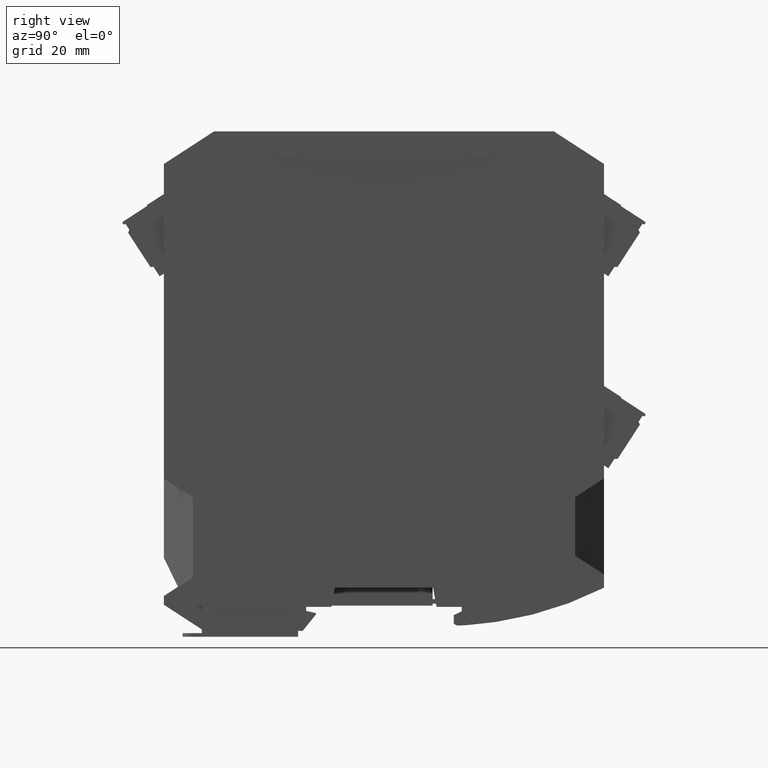
[diagram: clean part render]
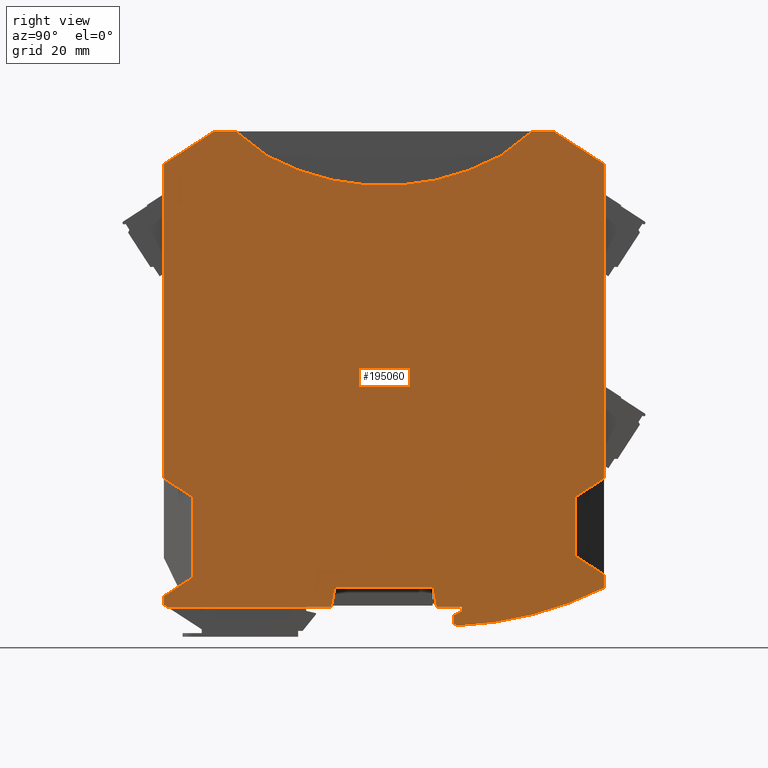
[diagram: same view with one face highlighted and labeled with its STEP entity id]
A machine part, right view. The second image highlights one B-rep face of the part: STEP entity #195060.
In plain terms, the highlighted planar face has unit normal (1, -0, -0).
Its self-contained STEP definition (entity closure, byte-faithful):
#192610=CARTESIAN_POINT('',(12.5999992226559,78.7424712276297,
8.78817903685641));
#192620=DIRECTION('',(1.,-2.28384227807283E-18,-2.28384227806855E-18));
#192630=DIRECTION('',(2.28384227806852E-18,1.,-1.88477583894362E-12));
#192640=AXIS2_PLACEMENT_3D('',#192610,#192620,#192630);
#192650=PLANE('',#192640);
#192660=CARTESIAN_POINT('',(12.5999992226559,56.3643478316776,
87.6172334752486));
#192670=DIRECTION('',(-3.93618568336303E-19,-0.788010753606729,
0.61566147532565));
#192680=VECTOR('',#192670,1.);
#192690=LINE('',#192660,#192680);
#192700=CARTESIAN_POINT('',(12.5999992226559,30.0196080509323,
108.200000000004));
#192710=VERTEX_POINT('',#192700);
#192720=CARTESIAN_POINT('',(12.5999992226559,23.0439261554903,
113.649999999996));
#192730=VERTEX_POINT('',#192720);
#192740=EDGE_CURVE('',#192710,#192730,#192690,.T.);
#192750=ORIENTED_EDGE('',*,*,#192740,.T.);
#192760=CARTESIAN_POINT('',(12.5999992226559,56.3643478316776,
87.6172334752487));
#192770=DIRECTION('',(3.93618568336303E-19,0.788010753606729,
-0.61566147532565));
#192780=VECTOR('',#192770,1.);
#192790=LINE('',#192760,#192780);
#192800=CARTESIAN_POINT('',(12.5999992226559,30.0836051325353,
108.150000000009));
#192810=VERTEX_POINT('',#192800);
#192820=EDGE_CURVE('',#192710,#192810,#192790,.T.);
#192830=ORIENTED_EDGE('',*,*,#192820,.F.);
#192840=CARTESIAN_POINT('',(12.5999992226559,56.364347831579,
156.343092299512));
#192850=DIRECTION('',(-1.,2.22464679914735E-16,-4.93038065763132E-32));
#192860=DIRECTION('',(-2.22464679914735E-16,-1.,-2.22464679914932E-16));
#192870=AXIS2_PLACEMENT_3D('',#192840,#192850,#192860);
#192880=CIRCLE('',#192870,54.8930922995028);
#192890=CARTESIAN_POINT('',(12.5999992226559,82.6450905306229,
108.150000000009));
#192900=VERTEX_POINT('',#192890);
#192910=EDGE_CURVE('',#192900,#192810,#192880,.T.);
#192920=ORIENTED_EDGE('',*,*,#192910,.T.);
#192930=CARTESIAN_POINT('',(12.5999992226559,56.3643478316776,
87.6172334754011));
#192940=DIRECTION('',(3.20576598098986E-18,0.788010753606706,
0.615661475325679));
#192950=VECTOR('',#192940,1.);
#192960=LINE('',#192930,#192950);
#192970=CARTESIAN_POINT('',(12.5999992226559,82.7090876122257,
108.200000000004));
#192980=VERTEX_POINT('',#192970);
#192990=EDGE_CURVE('',#192900,#192980,#192960,.T.);
#193000=ORIENTED_EDGE('',*,*,#192990,.F.);
#193010=CARTESIAN_POINT('',(12.5999992226559,56.3643478316776,
87.6172334754011));
#193020=DIRECTION('',(-3.20576598098986E-18,-0.788010753606706,
-0.615661475325679));
#193030=VECTOR('',#193020,1.);
#193040=LINE('',#193010,#193030);
#193050=CARTESIAN_POINT('',(12.5999992226559,89.6847695075065,
113.64999999987));
#193060=VERTEX_POINT('',#193050);
#193070=EDGE_CURVE('',#193060,#192980,#193040,.T.);
#193080=ORIENTED_EDGE('',*,*,#193070,.T.);
#193090=CARTESIAN_POINT('',(12.5999992226559,56.3643478317267,
113.649999999933));
#193100=DIRECTION('',(-2.28384227806852E-18,-1.,1.88477583894362E-12));
#193110=VECTOR('',#193100,1.);
#193120=LINE('',#193090,#193110);
#193130=CARTESIAN_POINT('',(12.5999992226559,94.5643478317183,
113.649999999861));
#193140=VERTEX_POINT('',#193130);
#193150=EDGE_CURVE('',#193140,#193060,#193120,.T.);
#193160=ORIENTED_EDGE('',*,*,#193150,.T.);
#193170=CARTESIAN_POINT('',(12.5999992226559,56.3643478317735,
138.457370060075));
#193180=DIRECTION('',(-6.71521645989226E-19,-0.838670567944371,
0.544639035016649));
#193190=VECTOR('',#193180,1.);
#193200=LINE('',#193170,#193190);
#193210=CARTESIAN_POINT('',(12.5999992226559,105.864347832024,
106.3116941965));
#193220=VERTEX_POINT('',#193210);
#193230=EDGE_CURVE('',#193220,#193140,#193200,.T.);
#193240=ORIENTED_EDGE('',*,*,#193230,.T.);
#193250=CARTESIAN_POINT('',(12.5999992226559,105.864347831827,
-45.7500000001573));
#193260=DIRECTION('',(2.28384227806342E-18,-2.2462133274804E-12,1.));
#193270=VECTOR('',#193260,1.);
#193280=LINE('',#193250,#193270);
#193290=CARTESIAN_POINT('',(12.5999992226559,105.864347831891,
35.5499999998454));
#193300=VERTEX_POINT('',#193290);
#193310=EDGE_CURVE('',#193300,#193220,#193280,.T.);
#193320=ORIENTED_EDGE('',*,*,#193310,.T.);
#193330=CARTESIAN_POINT('',(12.5999992226559,56.3643478315189,
3.40432413645924));
#193340=DIRECTION('',(3.15926095490162E-18,0.838670567946448,
0.54463903501345));
#193350=VECTOR('',#193340,1.);
#193360=LINE('',#193330,#193350);
#193370=CARTESIAN_POINT('',(12.5999992226559,99.3643478320572,
31.3288506441107));
#193380=VERTEX_POINT('',#193370);
#193390=EDGE_CURVE('',#193380,#193300,#193360,.T.);
#193400=ORIENTED_EDGE('',*,*,#193390,.T.);
#193410=CARTESIAN_POINT('',(12.5999992226559,99.3643478319119,
-45.750000000145));
#193420=DIRECTION('',(2.28384227807285E-18,1.88477583894362E-12,1.));
#193430=VECTOR('',#193420,1.);
#193440=LINE('',#193410,#193430);
#193450=CARTESIAN_POINT('',(12.5999992226559,99.3643478320324,
18.1711493556043));
#193460=VERTEX_POINT('',#193450);
#193470=EDGE_CURVE('',#193460,#193380,#193440,.T.);
#193480=ORIENTED_EDGE('',*,*,#193470,.T.);
#193490=CARTESIAN_POINT('',(12.5999992226559,56.3643478315994,
46.0956758634177));
#193500=DIRECTION('',(-6.71521645989376E-19,-0.838670567944397,
0.544639035016609));
#193510=VECTOR('',#193500,1.);
#193520=LINE('',#193490,#193510);
#193530=CARTESIAN_POINT('',(12.5999992226559,105.86434783185,
13.9499999998452));
#193540=VERTEX_POINT('',#193530);
#193550=EDGE_CURVE('',#193540,#193460,#193520,.T.);
#193560=ORIENTED_EDGE('',*,*,#193550,.T.);
#193570=CARTESIAN_POINT('',(12.5999992226559,105.864347831738,
-45.7500000001573));
#193580=DIRECTION('',(2.28384227807285E-18,1.88477583894362E-12,1.));
#193590=VECTOR('',#193580,1.);
#193600=LINE('',#193570,#193590);
#193610=CARTESIAN_POINT('',(12.5999992226559,105.864347831845,
10.9577156021333));
#193620=VERTEX_POINT('',#193610);
#193630=EDGE_CURVE('',#193620,#193540,#193600,.T.);
#193640=ORIENTED_EDGE('',*,*,#193630,.T.);
#193650=CARTESIAN_POINT('',(12.5999992226559,69.8643478314702,
82.3999999999116));
#193660=DIRECTION('',(1.,-2.24748522192808E-16,-2.28384227764925E-18));
#193670=DIRECTION('',(2.24748522192804E-16,1.,-1.88477583894362E-12));
#193680=AXIS2_PLACEMENT_3D('',#193650,#193660,#193670);
#193690=CIRCLE('',#193680,80.);
#193700=CARTESIAN_POINT('',(12.5999992226559,72.8348559634011,
2.4551685132036));
#193710=VERTEX_POINT('',#193700);
#193720=EDGE_CURVE('',#193710,#193620,#193690,.T.);
#193730=ORIENTED_EDGE('',*,*,#193720,.T.);
#193740=CARTESIAN_POINT('',(12.5999992226559,56.3643478315335,
11.1520549917051));
#193750=DIRECTION('',(9.53188786604706E-19,0.884293463267878,
-0.466931548325557));
#193760=VECTOR('',#193750,1.);
#193770=LINE('',#193740,#193760);
#193780=CARTESIAN_POINT('',(12.5999992226559,72.0643478315185,
2.86201824122019));
#193790=VERTEX_POINT('',#193780);
#193800=EDGE_CURVE('',#193790,#193710,#193770,.T.);
#193810=ORIENTED_EDGE('',*,*,#193800,.T.);
#193820=CARTESIAN_POINT('',(12.5999992226559,72.0643478314266,
-45.7500000000936));
#193830=DIRECTION('',(-2.28384227807286E-18,-1.89111892978225E-12,-1.));
#193840=VECTOR('',#193830,1.);
#193850=LINE('',#193820,#193840);
#193860=CARTESIAN_POINT('',(12.5999992226559,72.0643478315222,
4.81064621522707));
#193870=VERTEX_POINT('',#193860);
#193880=EDGE_CURVE('',#193870,#193790,#193850,.T.);
#193890=ORIENTED_EDGE('',*,*,#193880,.T.);
#193900=CARTESIAN_POINT('',(12.5999992226559,56.3643478315078,
-2.5103840177771));
#193910=DIRECTION('',(-3.03505749462609E-18,-0.906307787037447,
-0.422618261738991));
#193920=VECTOR('',#193910,1.);
#193930=LINE('',#193900,#193920);
#193940=CARTESIAN_POINT('',(12.5999992226559,73.8643478315236,
5.64999999990262));
#193950=VERTEX_POINT('',#193940);
#193960=EDGE_CURVE('',#193950,#193870,#193930,.T.);
#193970=ORIENTED_EDGE('',*,*,#193960,.T.);
#193980=CARTESIAN_POINT('',(12.5999992226559,73.8643478314171,
-45.750000000097));
#193990=DIRECTION('',(-2.28384227807328E-18,-2.07306966391979E-12,-1.));
#194000=VECTOR('',#193990,1.);
#194010=LINE('',#193980,#194000);
#194020=CARTESIAN_POINT('',(12.5999992226559,73.8643478315257,
6.64999999990401));
#194030=VERTEX_POINT('',#194020);
#194040=EDGE_CURVE('',#194030,#193950,#194010,.T.);
#194050=ORIENTED_EDGE('',*,*,#194040,.T.);
#194060=CARTESIAN_POINT('',(12.5999992226559,56.364347831525,
6.64999999993364));
#194070=DIRECTION('',(2.28384227806896E-18,1.,-1.6929293002884E-12));
#194080=VECTOR('',#194070,1.);
#194090=LINE('',#194060,#194080);
#194100=CARTESIAN_POINT('',(12.5999992226559,68.1813701976076,
6.64999999991363));
#194110=VERTEX_POINT('',#194100);
#194120=EDGE_CURVE('',#194110,#194030,#194090,.T.);
#194130=ORIENTED_EDGE('',*,*,#194120,.T.);
#194140=CARTESIAN_POINT('',(12.5999992226559,77.4209039866324,
-45.7500000001037));
#194150=DIRECTION('',(-1.85256053243792E-18,0.173648177665074,
-0.984807753012535));
#194160=VECTOR('',#194150,1.);
#194170=LINE('',#194140,#194160);
#194180=CARTESIAN_POINT('',(12.5999992226559,67.4143478315339,
10.9999999999156));
#194190=VERTEX_POINT('',#194180);
#194200=EDGE_CURVE('',#194190,#194110,#194170,.T.);
#194210=ORIENTED_EDGE('',*,*,#194200,.T.);
#194220=CARTESIAN_POINT('',(12.5999992226559,56.3643478315332,
10.9999999999364));
#194230=DIRECTION('',(2.28384227806852E-18,1.,-1.88477583894362E-12));
#194240=VECTOR('',#194230,1.);
#194250=LINE('',#194220,#194240);
#194260=CARTESIAN_POINT('',(12.5999992226559,45.314347831534,
10.9999999999572));
#194270=VERTEX_POINT('',#194260);
#194280=EDGE_CURVE('',#194270,#194190,#194250,.T.);
#194290=ORIENTED_EDGE('',*,*,#194280,.T.);
#194300=CARTESIAN_POINT('',(12.5999992226559,35.3077916762215,
-45.7500000000243));
#194310=DIRECTION('',(2.6457306317685E-18,0.173648177668787,
0.984807753011881));
#194320=VECTOR('',#194310,1.);
#194330=LINE('',#194300,#194320);
#194340=CARTESIAN_POINT('',(12.5999992226559,44.5473254654439,
6.64999999995855));
#194350=VERTEX_POINT('',#194340);
#194360=EDGE_CURVE('',#194350,#194270,#194330,.T.);
#194370=ORIENTED_EDGE('',*,*,#194360,.T.);
#194380=CARTESIAN_POINT('',(12.5999992226559,56.364347831525,
6.64999999993626));
#194390=DIRECTION('',(2.28384227806852E-18,1.,-1.88477583894362E-12));
#194400=VECTOR('',#194390,1.);
#194410=LINE('',#194380,#194400);
#194420=CARTESIAN_POINT('',(12.5999992226559,7.59509053055207,
6.65000000002843));
#194430=VERTEX_POINT('',#194420);
#194440=EDGE_CURVE('',#194430,#194350,#194410,.T.);
#194450=ORIENTED_EDGE('',*,*,#194440,.T.);
#194460=CARTESIAN_POINT('',(12.5999992226559,55.9643478315123,
-24.7613629685393));
#194470=DIRECTION('',(-6.71521645995334E-19,-0.838670567945424,
0.544639035015027));
#194480=VECTOR('',#194470,1.);
#194490=LINE('',#194460,#194480);
#194500=CARTESIAN_POINT('',(12.5999992226559,6.86434783125111,
7.12454985762811));
#194510=VERTEX_POINT('',#194500);
#194520=EDGE_CURVE('',#194430,#194510,#194490,.T.);
#194530=ORIENTED_EDGE('',*,*,#194520,.F.);
#194540=CARTESIAN_POINT('',(12.5999992226559,6.86434783125115,
-45.7999999999945));
#194550=DIRECTION('',(2.28384227806854E-18,-2.22464679914932E-16,1.));
#194560=VECTOR('',#194550,1.);
#194570=LINE('',#194540,#194560);
#194580=CARTESIAN_POINT('',(12.5999992226559,6.86434783125113,
9.058430509167));
#194590=VERTEX_POINT('',#194580);
#194600=EDGE_CURVE('',#194510,#194590,#194570,.T.);
#194610=ORIENTED_EDGE('',*,*,#194600,.F.);
#194620=CARTESIAN_POINT('',(12.5999992226559,56.3643478315901,
41.2041063726642));
#194630=DIRECTION('',(-3.15926095490288E-18,-0.838670567945422,
-0.54463903501503));
#194640=VECTOR('',#194630,1.);
#194650=LINE('',#194620,#194640);
#194660=CARTESIAN_POINT('',(12.5999992226559,13.3643478310508,
13.2795798648207));
#194670=VERTEX_POINT('',#194660);
#194680=EDGE_CURVE('',#194670,#194590,#194650,.T.);
#194690=ORIENTED_EDGE('',*,*,#194680,.T.);
#194700=CARTESIAN_POINT('',(12.5999992226559,13.3643478309395,
-45.7499999999829));
#194710=DIRECTION('',(-2.28384227807285E-18,-1.88477583894362E-12,-1.));
#194720=VECTOR('',#194710,1.);
#194730=LINE('',#194700,#194720);
#194740=CARTESIAN_POINT('',(12.5999992226559,13.3643478310848,
31.3288506443225));
#194750=VERTEX_POINT('',#194740);
#194760=EDGE_CURVE('',#194750,#194670,#194730,.T.);
#194770=ORIENTED_EDGE('',*,*,#194760,.T.);
#194780=CARTESIAN_POINT('',(12.5999992226559,56.3643478315189,
3.40432413645884));
#194790=DIRECTION('',(6.71521645989384E-19,0.838670567944398,
-0.544639035016607));
#194800=VECTOR('',#194790,1.);
#194810=LINE('',#194780,#194800);
#194820=CARTESIAN_POINT('',(12.5999992226559,6.86434783126687,
35.5500000000319));
#194830=VERTEX_POINT('',#194820);
#194840=EDGE_CURVE('',#194830,#194750,#194810,.T.);
#194850=ORIENTED_EDGE('',*,*,#194840,.T.);
#194860=CARTESIAN_POINT('',(12.5999992226559,6.86434783111366,
-45.7499999999707));
#194870=DIRECTION('',(-2.28384227807285E-18,-1.88477583894362E-12,-1.));
#194880=VECTOR('',#194870,1.);
#194890=LINE('',#194860,#194880);
#194900=CARTESIAN_POINT('',(12.5999992226559,6.86434783140024,
106.311694196686));
#194910=VERTEX_POINT('',#194900);
#194920=EDGE_CURVE('',#194910,#194830,#194890,.T.);
#194930=ORIENTED_EDGE('',*,*,#194920,.T.);
#194940=CARTESIAN_POINT('',(12.5999992226559,56.3643478317735,
138.457370060076));
#194950=DIRECTION('',(-3.15926095490165E-18,-0.838670567946423,
-0.544639035013488));
#194960=VECTOR('',#194950,1.);
#194970=LINE('',#194940,#194960);
#194980=CARTESIAN_POINT('',(12.5999992226559,18.1643478317341,
113.650000000005));
#194990=VERTEX_POINT('',#194980);
#195000=EDGE_CURVE('',#194990,#194910,#194970,.T.);
#195010=ORIENTED_EDGE('',*,*,#195000,.T.);
#195020=EDGE_CURVE('',#192730,#194990,#193120,.T.);
#195030=ORIENTED_EDGE('',*,*,#195020,.T.);
#195040=EDGE_LOOP('',(#195030,#195010,#194930,#194850,#194770,#194690,
#194610,#194530,#194450,#194370,#194290,#194210,#194130,#194050,#193970,
#193890,#193810,#193730,#193640,#193560,#193480,#193400,#193320,#193240,
#193160,#193080,#193000,#192920,#192830,#192750));
#195050=FACE_OUTER_BOUND('',#195040,.T.);
#195060=ADVANCED_FACE('',(#195050),#192650,.T.);